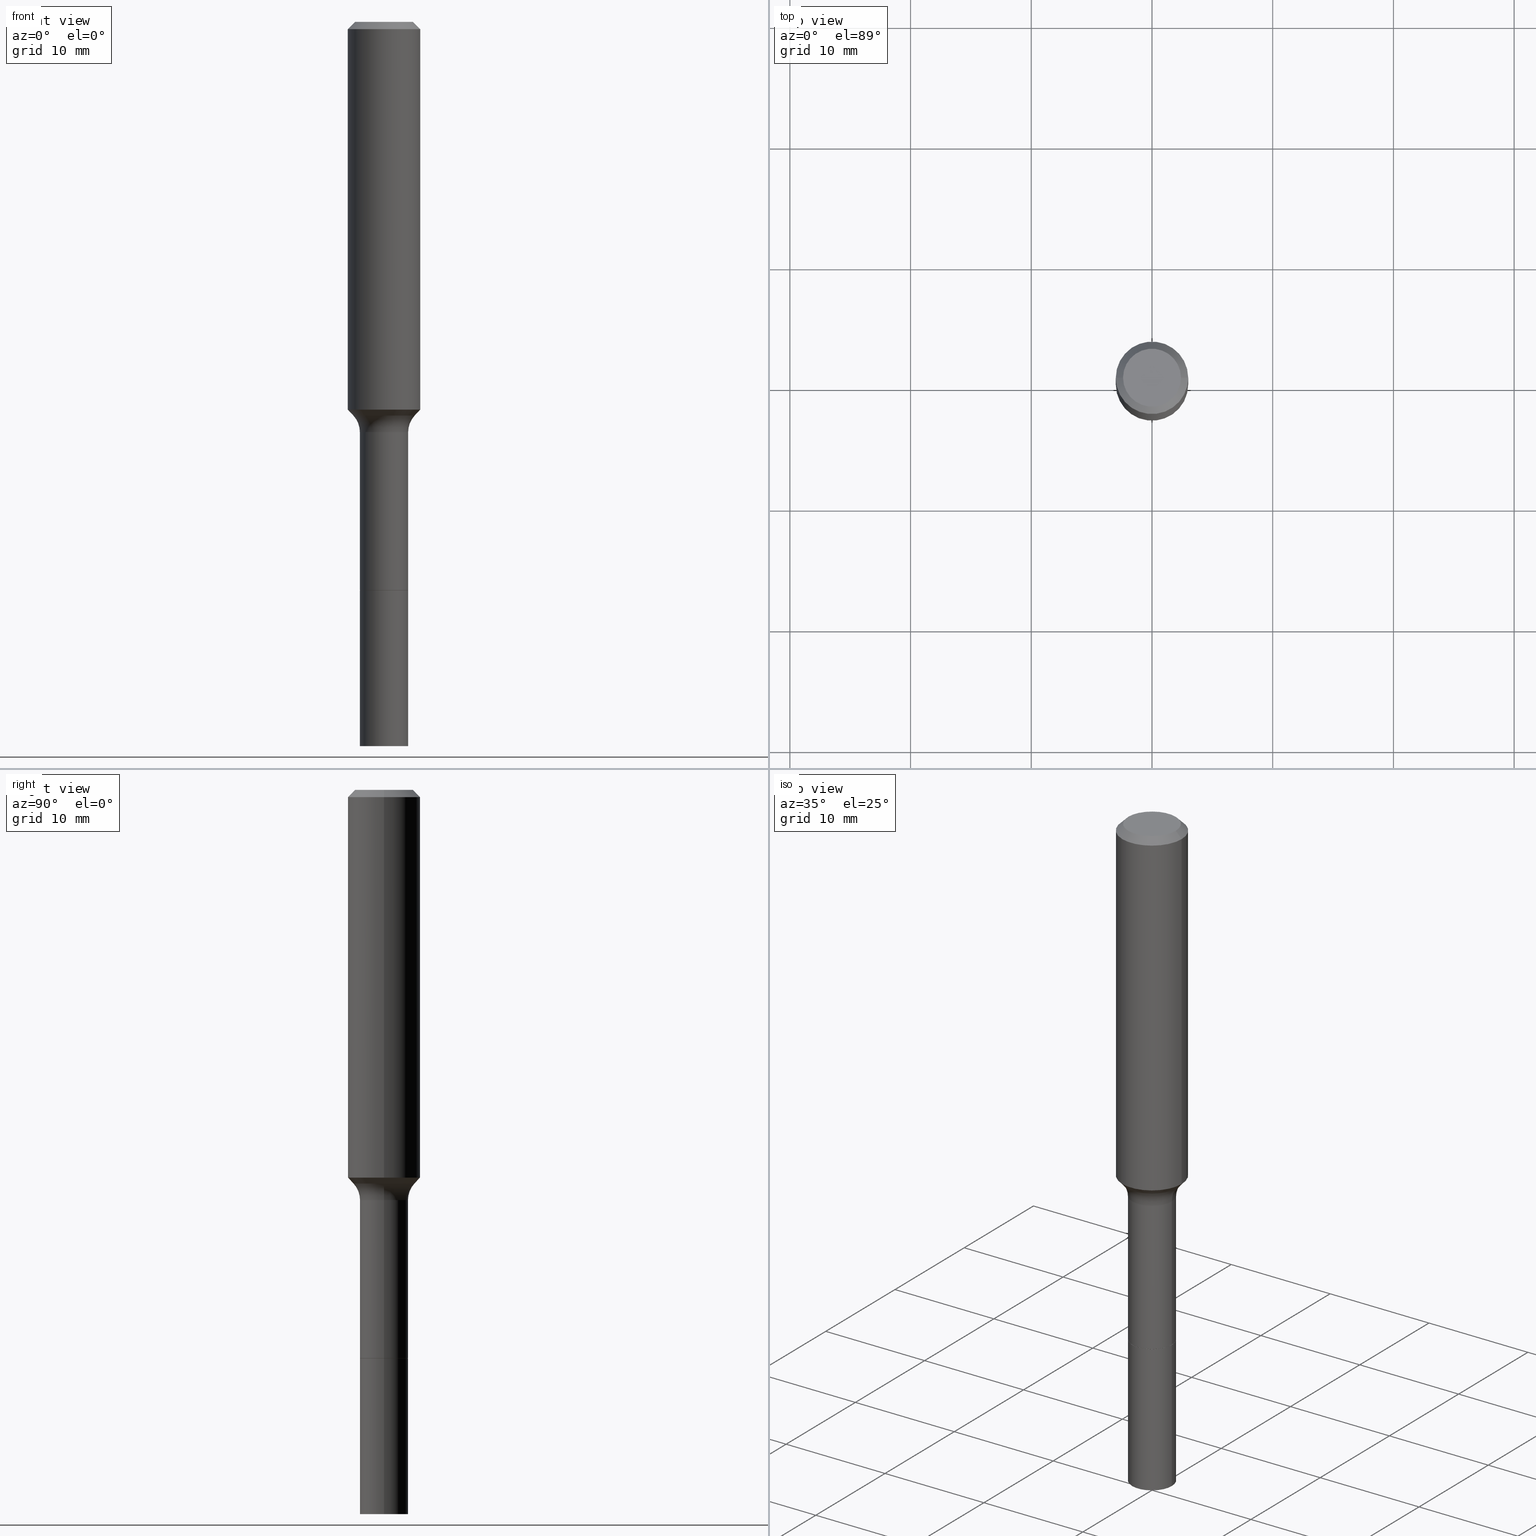
[diagram: canonical four-view strip — front | top / right | iso, engineering-drawing reading convention]
A machine part, canonical four-view strip (front | top / right | iso — engineering-drawing reading convention). The complete STEP part file that produces these views, byte-faithful:
ISO-10303-21;
HEADER;
FILE_DESCRIPTION (( 'STEP AP203' ),
    '1' );
FILE_NAME ('67715.STEP',
    '2025-04-01T15:29:38',
    ( '' ),
    ( '' ),
    'SwSTEP 2.0',
    'SolidWorks 2024',
    '' );
FILE_SCHEMA (( 'CONFIG_CONTROL_DESIGN' ));
ENDSEC;

DATA;
#1 = ORIENTED_EDGE ( 'NONE', *, *, #395, .T. ) ;
#2 = APPROVAL_ROLE ( '' ) ;
#3 = APPLICATION_CONTEXT ( 'configuration controlled 3d designs of mechanical parts and assemblies' ) ;
#4 = AXIS2_PLACEMENT_3D ( 'NONE', #65, #32, #40 ) ;
#5 = CARTESIAN_POINT ( 'NONE',  ( 7.545787641473140628E-46, -1.077338491108201769E-31, -3.085620075131671975E-17 ) ) ;
#6 = DIRECTION ( 'NONE',  ( -2.445468806185136597E-29, 3.491481338843145583E-15, 1.000000000000000000 ) ) ;
#7 = DIRECTION ( 'NONE',  ( -2.445468806185136877E-29, 3.491481338843145188E-15, 1.000000000000000000 ) ) ;
#8 = DIRECTION ( 'NONE',  ( -2.445468806185136597E-29, 3.491481338843145583E-15, 1.000000000000000000 ) ) ;
#9 = COORDINATED_UNIVERSAL_TIME_OFFSET ( 5, 0, .BEHIND. ) ;
#10 = EDGE_CURVE ( 'NONE', #408, #178, #84, .T. ) ;
#11 = DIRECTION ( 'NONE',  ( 2.445468806185136597E-29, -3.491481338843145583E-15, -1.000000000000000000 ) ) ;
#12 = CARTESIAN_POINT ( 'NONE',  ( 5.776686413970529753E-29, -8.247577218615279626E-15, -2.362200000000000077 ) ) ;
#13 = FACE_OUTER_BOUND ( 'NONE', #228, .T. ) ;
#14 = VECTOR ( 'NONE', #433, 39.37007874015748143 ) ;
#15 = DESIGN_CONTEXT ( 'detailed design', #3, 'design' ) ;
#16 = DIRECTION ( 'NONE',  ( -1.000000000000000000, 6.982962677686265922E-15, -4.876176775795935793E-29 ) ) ;
#17 = EDGE_LOOP ( 'NONE', ( #151, #137 ) ) ;
#18 = AXIS2_PLACEMENT_3D ( 'NONE', #129, #171, #447 ) ;
#19 = ORIENTED_EDGE ( 'NONE', *, *, #275, .F. ) ;
#20 = AXIS2_PLACEMENT_3D ( 'NONE', #41, #235, #472 ) ;
#21 = EDGE_CURVE ( 'NONE', #198, #100, #358, .T. ) ;
#22 = ORIENTED_EDGE ( 'NONE', *, *, #482, .T. ) ;
#23 = APPLICATION_PROTOCOL_DEFINITION ( 'international standard', 'config_control_design', 1994, #492 ) ;
#24 = EDGE_CURVE ( 'NONE', #385, #268, #152, .T. ) ;
#25 = VERTEX_POINT ( 'NONE', #310 ) ;
#26 = DIRECTION ( 'NONE',  ( 0.7071067811866199593, -2.468850131083015945E-15, 0.7071067811864750752 ) ) ;
#27 = CIRCLE ( 'NONE', #4, 0.07999999999999996003 ) ;
#28 = EDGE_LOOP ( 'NONE', ( #411, #321 ) ) ;
#29 = CARTESIAN_POINT ( 'NONE',  ( 0.1180999999999999966, -9.071566814582237199E-16, -0.02362000000000014435 ) ) ;
#30 = EDGE_CURVE ( 'NONE', #508, #135, #196, .T. ) ;
#31 = EDGE_LOOP ( 'NONE', ( #19, #378, #22, #105 ) ) ;
#32 = DIRECTION ( 'NONE',  ( 7.105427357601001859E-15, 1.000000000000000000, -3.491481338843145583E-15 ) ) ;
#33 = UNCERTAINTY_MEASURE_WITH_UNIT (LENGTH_MEASURE( 1.000000000000000082E-05 ), #329, 'distance_accuracy_value', 'NONE');
#34 = DIRECTION ( 'NONE',  ( 1.000000000000000000, -6.982962677686264344E-15, 0.000000000000000000 ) ) ;
#35 = AXIS2_PLACEMENT_3D ( 'NONE', #298, #375, #61 ) ;
#36 = DIRECTION ( 'NONE',  ( -2.445468806185136597E-29, 3.491481338843145583E-15, 1.000000000000000000 ) ) ;
#37 = CONICAL_SURFACE ( 'NONE', #327, 0.07825000000000000011, 0.7853981633975507526 ) ;
#38 = CONICAL_SURFACE ( 'NONE', #466, 0.1180999999999999966, 0.7853981633974461696 ) ;
#39 = ADVANCED_FACE ( 'NONE', ( #203 ), #345, .T. ) ;
#40 = DIRECTION ( 'NONE',  ( -1.000000000000000000, 7.105427357601001859E-15, 0.000000000000000000 ) ) ;
#41 = CARTESIAN_POINT ( 'NONE',  ( 0.000000000000000000, 0.000000000000000000, 0.000000000000000000 ) ) ;
#42 = DIRECTION ( 'NONE',  ( -2.445468806185136597E-29, 3.491481338843145583E-15, 1.000000000000000000 ) ) ;
#43 = ORIENTED_EDGE ( 'NONE', *, *, #482, .F. ) ;
#44 = APPROVAL_ROLE ( '' ) ;
#45 = CARTESIAN_POINT ( 'NONE',  ( -0.07874999999999994504, 5.595524044110785059E-16, -3.873661383575735690E-30 ) ) ;
#46 = DIRECTION ( 'NONE',  ( -2.445468806185136877E-29, 3.491481338843145188E-15, 1.000000000000000000 ) ) ;
#47 = PERSON_AND_ORGANIZATION ( #257, #244 ) ;
#48 = DIRECTION ( 'NONE',  ( -2.445468806185136877E-29, 3.491481338843145188E-15, 1.000000000000000000 ) ) ;
#49 = CARTESIAN_POINT ( 'NONE',  ( 4.534388260428479994E-29, -6.473904698482961003E-15, -1.854200000000000070 ) ) ;
#50 = CARTESIAN_POINT ( 'NONE',  ( 0.07875000000000008382, -7.023813009350755138E-15, -1.854200000000000070 ) ) ;
#51 = CARTESIAN_POINT ( 'NONE',  ( 0.07875000000000000056, -7.022067268681332845E-15, -1.853700000000000125 ) ) ;
#52 = CIRCLE ( 'NONE', #511, 0.1181000000000001493 ) ;
#53 = AXIS2_PLACEMENT_3D ( 'NONE', #477, #313, #231 ) ;
#54 = CALENDAR_DATE ( 2025, 1, 4 ) ;
#55 = DIRECTION ( 'NONE',  ( -2.445468806185136597E-29, 3.491481338843145583E-15, 1.000000000000000000 ) ) ;
#56 = APPROVAL ( #488, 'UNSPECIFIED' ) ;
#57 = ORIENTED_EDGE ( 'NONE', *, *, #21, .T. ) ;
#58 = TOROIDAL_SURFACE ( 'NONE', #218, 0.1587499999999999190, 0.07999999999999996003 ) ;
#59 = ORIENTED_EDGE ( 'NONE', *, *, #292, .F. ) ;
#60 = ORIENTED_EDGE ( 'NONE', *, *, #386, .T. ) ;
#61 = DIRECTION ( 'NONE',  ( 1.000000000000000000, -6.982962677686261977E-15, 0.000000000000000000 ) ) ;
#62 = EDGE_CURVE ( 'NONE', #372, #177, #405, .T. ) ;
#63 = VECTOR ( 'NONE', #161, 39.37007874015748143 ) ;
#64 = LINE ( 'NONE', #229, #128 ) ;
#65 = CARTESIAN_POINT ( 'NONE',  ( -0.1587499999999999190, -3.544313734620738473E-15, -1.338200000000000056 ) ) ;
#66 = EDGE_CURVE ( 'NONE', #25, #297, #473, .T. ) ;
#67 = ORIENTED_EDGE ( 'NONE', *, *, #275, .T. ) ;
#68 = DIRECTION ( 'NONE',  ( 2.438088387897960049E-29, -3.491481338843145188E-15, -1.000000000000000000 ) ) ;
#69 = AXIS2_PLACEMENT_3D ( 'NONE', #382, #277, #197 ) ;
#70 = MANIFOLD_SOLID_BREP ( 'Body-Move/Copy2[2]', #514 ) ;
#71 = DIRECTION ( 'NONE',  ( 1.000000000000000000, -6.982962677686267499E-15, 4.875432709231658792E-29 ) ) ;
#72 = EDGE_CURVE ( 'NONE', #508, #408, #52, .T. ) ;
#73 =( GEOMETRIC_REPRESENTATION_CONTEXT ( 3 ) GLOBAL_UNCERTAINTY_ASSIGNED_CONTEXT ( ( #33 ) ) GLOBAL_UNIT_ASSIGNED_CONTEXT ( ( #329, #258, #265 ) ) REPRESENTATION_CONTEXT ( 'NONE', 'WORKASPACE' ) );
#74 = CALENDAR_DATE ( 2025, 1, 4 ) ;
#75 = MANIFOLD_SOLID_BREP ( 'Body-Move/Copy2[1]', #369 ) ;
#76 = ORIENTED_EDGE ( 'NONE', *, *, #24, .T. ) ;
#77 = COORDINATED_UNIVERSAL_TIME_OFFSET ( 5, 0, .BEHIND. ) ;
#78 = DIRECTION ( 'NONE',  ( -2.445468806185136597E-29, 3.491481338843145583E-15, 1.000000000000000000 ) ) ;
#79 = ADVANCED_BREP_SHAPE_REPRESENTATION ( '67715', ( #75, #70, #139 ), #73 ) ;
#80 = EDGE_LOOP ( 'NONE', ( #338, #334 ) ) ;
#81 = LINE ( 'NONE', #45, #226 ) ;
#82 = EDGE_CURVE ( 'NONE', #123, #135, #165, .T. ) ;
#83 = CARTESIAN_POINT ( 'NONE',  ( 0.000000000000000000, 0.000000000000000000, 0.000000000000000000 ) ) ;
#84 = LINE ( 'NONE', #434, #63 ) ;
#85 = CONICAL_SURFACE ( 'NONE', #69, 0.1180999999999999966, 0.7853981633974461696 ) ;
#86 = CC_DESIGN_APPROVAL ( #140, ( #237 ) ) ;
#87 = DIRECTION ( 'NONE',  ( 1.000000000000000000, -6.982962677686261977E-15, 0.000000000000000000 ) ) ;
#88 = PERSON_AND_ORGANIZATION_ROLE ( 'design_supplier' ) ;
#89 = FACE_OUTER_BOUND ( 'NONE', #461, .T. ) ;
#90 = ADVANCED_FACE ( 'NONE', ( #126 ), #37, .T. ) ;
#91 = LINE ( 'NONE', #122, #374 ) ;
#92 = APPROVAL_STATUS ( 'not_yet_approved' ) ;
#93 = PRODUCT_RELATED_PRODUCT_CATEGORY ( 'detail', '', ( #269 ) ) ;
#94 = DIRECTION ( 'NONE',  ( 1.000000000000000000, -6.982962677686269866E-15, 0.000000000000000000 ) ) ;
#95 = AXIS2_PLACEMENT_3D ( 'NONE', #436, #325, #289 ) ;
#96 = CARTESIAN_POINT ( 'NONE',  ( 3.272526356436949336E-29, -4.672300327639896745E-15, -1.338200000000000056 ) ) ;
#97 = DIRECTION ( 'NONE',  ( 1.000000000000000000, -6.982962677686266711E-15, 4.876176775795936353E-29 ) ) ;
#98 = ORIENTED_EDGE ( 'NONE', *, *, #485, .F. ) ;
#99 = EDGE_CURVE ( 'NONE', #307, #123, #263, .T. ) ;
#100 = VERTEX_POINT ( 'NONE', #389 ) ;
#101 = CONICAL_SURFACE ( 'NONE', #380, 0.07825000000000000011, 0.7853981633975507526 ) ;
#102 = CC_DESIGN_SECURITY_CLASSIFICATION ( #432, ( #381 ) ) ;
#103 = EDGE_LOOP ( 'NONE', ( #510, #57, #421, #504 ) ) ;
#104 = EDGE_CURVE ( 'NONE', #177, #372, #200, .T. ) ;
#105 = ORIENTED_EDGE ( 'NONE', *, *, #24, .F. ) ;
#106 = FACE_OUTER_BOUND ( 'NONE', #225, .T. ) ;
#107 = ORIENTED_EDGE ( 'NONE', *, *, #426, .T. ) ;
#108 = VERTEX_POINT ( 'NONE', #360 ) ;
#109 = ORIENTED_EDGE ( 'NONE', *, *, #232, .T. ) ;
#110 = VECTOR ( 'NONE', #127, 39.37007874015748143 ) ;
#111 = LOCAL_TIME ( 11, 29, 38.00000000000000000, #9 ) ;
#112 = DIRECTION ( 'NONE',  ( -2.445468806185136597E-29, 3.491481338843145583E-15, 1.000000000000000000 ) ) ;
#113 = ORIENTED_EDGE ( 'NONE', *, *, #467, .T. ) ;
#114 = DIRECTION ( 'NONE',  ( 1.000000000000000000, -6.982962677686264344E-15, 0.000000000000000000 ) ) ;
#115 = ADVANCED_FACE ( 'NONE', ( #399 ), #58, .F. ) ;
#116 = DIRECTION ( 'NONE',  ( -2.445468806185136597E-29, 3.491481338843145583E-15, 1.000000000000000000 ) ) ;
#117 = DIRECTION ( 'NONE',  ( -2.445468806185136597E-29, 3.491481338843145583E-15, 1.000000000000000000 ) ) ;
#118 = VECTOR ( 'NONE', #332, 39.37007874015748143 ) ;
#119 = EDGE_LOOP ( 'NONE', ( #501, #60, #238, #300 ) ) ;
#120 = LOCAL_TIME ( 11, 29, 38.00000000000000000, #247 ) ;
#121 = ADVANCED_FACE ( 'NONE', ( #487 ), #456, .F. ) ;
#122 = CARTESIAN_POINT ( 'NONE',  ( -0.07825000000000000011, -5.917905007750682311E-15, -1.854200000000000070 ) ) ;
#123 = VERTEX_POINT ( 'NONE', #323 ) ;
#124 = EDGE_CURVE ( 'NONE', #307, #178, #407, .T. ) ;
#125 = LINE ( 'NONE', #50, #431 ) ;
#126 = FACE_OUTER_BOUND ( 'NONE', #459, .T. ) ;
#127 = DIRECTION ( 'NONE',  ( -2.445468806185136877E-29, 3.491481338843145188E-15, 1.000000000000000000 ) ) ;
#128 = VECTOR ( 'NONE', #148, 39.37007874015748143 ) ;
#129 = CARTESIAN_POINT ( 'NONE',  ( 3.139101899204769565E-29, -4.481805563857511051E-15, -1.283640131195000311 ) ) ;
#130 = AXIS2_PLACEMENT_3D ( 'NONE', #273, #116, #357 ) ;
#131 = EDGE_CURVE ( 'NONE', #100, #297, #483, .T. ) ;
#132 = PLANE ( 'NONE',  #333 ) ;
#133 =( LENGTH_UNIT ( ) NAMED_UNIT ( * ) SI_UNIT ( $, .METRE. ) );
#134 = AXIS2_PLACEMENT_3D ( 'NONE', #83, #117, #274 ) ;
#135 = VERTEX_POINT ( 'NONE', #189 ) ;
#136 = ADVANCED_FACE ( 'NONE', ( #216 ), #255, .T. ) ;
#137 = ORIENTED_EDGE ( 'NONE', *, *, #450, .T. ) ;
#138 = TOROIDAL_SURFACE ( 'NONE', #160, 0.1587499999999999190, 0.07999999999999996003 ) ;
#139 = AXIS2_PLACEMENT_3D ( 'NONE', #451, #142, #498 ) ;
#140 = APPROVAL ( #92, 'UNSPECIFIED' ) ;
#141 = ORIENTED_EDGE ( 'NONE', *, *, #62, .T. ) ;
#142 = DIRECTION ( 'NONE',  ( 0.000000000000000000, 0.000000000000000000, 1.000000000000000000 ) ) ;
#143 = ORIENTED_EDGE ( 'NONE', *, *, #21, .F. ) ;
#144 = CC_DESIGN_PERSON_AND_ORGANIZATION_ASSIGNMENT ( #371, #361, ( #237 ) ) ;
#145 = EDGE_LOOP ( 'NONE', ( #187, #352, #341, #179 ) ) ;
#146 = CARTESIAN_POINT ( 'NONE',  ( 5.776197320209328408E-31, -8.246878922347560526E-17, -0.02362000000000014435 ) ) ;
#147 = ORIENTED_EDGE ( 'NONE', *, *, #373, .T. ) ;
#148 = DIRECTION ( 'NONE',  ( 0.6819983600624995868, -2.208861293262486453E-15, 0.7313537016191694606 ) ) ;
#149 = CIRCLE ( 'NONE', #35, 0.07875000000000000056 ) ;
#150 = AXIS2_PLACEMENT_3D ( 'NONE', #174, #223, #409 ) ;
#151 = ORIENTED_EDGE ( 'NONE', *, *, #413, .T. ) ;
#152 = CIRCLE ( 'NONE', #53, 0.07999999999999996003 ) ;
#153 = EDGE_CURVE ( 'NONE', #108, #339, #27, .T. ) ;
#154 = EDGE_LOOP ( 'NONE', ( #259, #302, #304, #505 ) ) ;
#155 = FACE_OUTER_BOUND ( 'NONE', #221, .T. ) ;
#156 = CARTESIAN_POINT ( 'NONE',  ( 3.092269513578415499E-29, -4.414941329051343156E-15, -1.264489453211333325 ) ) ;
#157 = CALENDAR_DATE ( 2025, 1, 4 ) ;
#158 = CARTESIAN_POINT ( 'NONE',  ( 3.272526356436949336E-29, -4.672300327639896745E-15, -1.338200000000000056 ) ) ;
#159 = VECTOR ( 'NONE', #480, 39.37007874015748143 ) ;
#160 = AXIS2_PLACEMENT_3D ( 'NONE', #188, #391, #194 ) ;
#161 = DIRECTION ( 'NONE',  ( -2.445468806185136877E-29, 3.491481338843145188E-15, 1.000000000000000000 ) ) ;
#162 = AXIS2_PLACEMENT_3D ( 'NONE', #267, #55, #493 ) ;
#163 = APPROVAL_STATUS ( 'not_yet_approved' ) ;
#164 = DIRECTION ( 'NONE',  ( -2.445468806185136597E-29, 3.491481338843145583E-15, 1.000000000000000000 ) ) ;
#165 = LINE ( 'NONE', #515, #159 ) ;
#166 = CALENDAR_DATE ( 2025, 1, 4 ) ;
#167 = CARTESIAN_POINT ( 'NONE',  ( 0.09447999999999998066, -7.704367267948738690E-16, -3.085620075131172158E-17 ) ) ;
#168 = CARTESIAN_POINT ( 'NONE',  ( 0.07874999999999991729, -5.222208638507690091E-15, -1.338200000000000056 ) ) ;
#169 = ADVANCED_FACE ( 'NONE', ( #311 ), #344, .F. ) ;
#170 = PERSON_AND_ORGANIZATION_ROLE ( 'creator' ) ;
#171 = DIRECTION ( 'NONE',  ( -2.445468806185136597E-29, 3.491481338843145583E-15, 1.000000000000000000 ) ) ;
#172 = VECTOR ( 'NONE', #46, 39.37007874015748143 ) ;
#173 = APPROVAL_ROLE ( '' ) ;
#174 = CARTESIAN_POINT ( 'NONE',  ( 4.534388260428479994E-29, -6.473904698482961003E-15, -1.854200000000000070 ) ) ;
#175 = CARTESIAN_POINT ( 'NONE',  ( 0.1180999999999999966, -8.926936027602933910E-16, -0.02362000000000014435 ) ) ;
#176 = ADVANCED_FACE ( 'NONE', ( #227 ), #85, .T. ) ;
#177 = VERTEX_POINT ( 'NONE', #303 ) ;
#178 = VERTEX_POINT ( 'NONE', #29 ) ;
#179 = ORIENTED_EDGE ( 'NONE', *, *, #232, .F. ) ;
#180 = CARTESIAN_POINT ( 'NONE',  ( 3.272526356436949336E-29, -4.672300327639896745E-15, -1.338200000000000056 ) ) ;
#181 = EDGE_CURVE ( 'NONE', #408, #508, #264, .T. ) ;
#182 = AXIS2_PLACEMENT_3D ( 'NONE', #276, #429, #71 ) ;
#183 = ORIENTED_EDGE ( 'NONE', *, *, #124, .T. ) ;
#184 = CIRCLE ( 'NONE', #195, 0.07874999999999991729 ) ;
#185 = CC_DESIGN_PERSON_AND_ORGANIZATION_ASSIGNMENT ( #47, #170, ( #381 ) ) ;
#186 = APPROVAL_PERSON_ORGANIZATION ( #294, #140, #173 ) ;
#187 = ORIENTED_EDGE ( 'NONE', *, *, #30, .F. ) ;
#188 = CARTESIAN_POINT ( 'NONE',  ( 3.272526356436949336E-29, -4.672300327639896745E-15, -1.338200000000000056 ) ) ;
#189 = CARTESIAN_POINT ( 'NONE',  ( -0.1180999999999999966, -1.409554088204729926E-15, -0.02362000000000014435 ) ) ;
#190 = ORIENTED_EDGE ( 'NONE', *, *, #467, .F. ) ;
#191 = FACE_OUTER_BOUND ( 'NONE', #31, .T. ) ;
#192 = CARTESIAN_POINT ( 'NONE',  ( 4.534388260428479994E-29, -6.473904698482961003E-15, -1.854200000000000070 ) ) ;
#193 = ADVANCED_FACE ( 'NONE', ( #516 ), #101, .T. ) ;
#194 = DIRECTION ( 'NONE',  ( 1.000000000000000000, -6.982962677686268288E-15, 4.883557194083113462E-29 ) ) ;
#195 = AXIS2_PLACEMENT_3D ( 'NONE', #180, #377, #94 ) ;
#196 = LINE ( 'NONE', #469, #172 ) ;
#197 = DIRECTION ( 'NONE',  ( -1.000000000000000000, 6.982962677686266711E-15, 0.000000000000000000 ) ) ;
#198 = VERTEX_POINT ( 'NONE', #428 ) ;
#199 = ORIENTED_EDGE ( 'NONE', *, *, #299, .T. ) ;
#200 = CIRCLE ( 'NONE', #296, 0.07875000000000015321 ) ;
#201 = CARTESIAN_POINT ( 'NONE',  ( 5.776686413970529753E-29, -8.247577218615279626E-15, -2.362200000000000077 ) ) ;
#202 = VECTOR ( 'NONE', #26, 39.37007874015748143 ) ;
#203 = FACE_OUTER_BOUND ( 'NONE', #420, .T. ) ;
#204 = DIRECTION ( 'NONE',  ( 1.000000000000000000, -6.982962677686269866E-15, 0.000000000000000000 ) ) ;
#205 = FACE_OUTER_BOUND ( 'NONE', #464, .T. ) ;
#206 = EDGE_CURVE ( 'NONE', #108, #508, #425, .T. ) ;
#207 = LINE ( 'NONE', #249, #270 ) ;
#208 = DIRECTION ( 'NONE',  ( -2.445468806185136597E-29, 3.491481338843145583E-15, 1.000000000000000000 ) ) ;
#209 = AXIS2_PLACEMENT_3D ( 'NONE', #322, #78, #484 ) ;
#210 = LOCAL_TIME ( 11, 29, 38.00000000000000000, #319 ) ;
#211 = DIRECTION ( 'NONE',  ( 1.000000000000000000, -6.982962677686267499E-15, 0.000000000000000000 ) ) ;
#212 = DATE_AND_TIME ( #54, #271 ) ;
#213 = CARTESIAN_POINT ( 'NONE',  ( -0.07875000000000000056, -6.801188554138039935E-15, -1.854200000000000070 ) ) ;
#214 = ADVANCED_FACE ( 'NONE', ( #191 ), #138, .F. ) ;
#215 = ORIENTED_EDGE ( 'NONE', *, *, #82, .T. ) ;
#216 = FACE_OUTER_BOUND ( 'NONE', #154, .T. ) ;
#217 = CARTESIAN_POINT ( 'NONE',  ( -0.1181000000000001493, -3.575790358118663381E-15, -1.264489453211333325 ) ) ;
#218 = AXIS2_PLACEMENT_3D ( 'NONE', #96, #8, #448 ) ;
#219 = AXIS2_PLACEMENT_3D ( 'NONE', #418, #460, #97 ) ;
#220 = ORIENTED_EDGE ( 'NONE', *, *, #292, .T. ) ;
#221 = EDGE_LOOP ( 'NONE', ( #379, #141, #376, #261 ) ) ;
#222 = ADVANCED_FACE ( 'NONE', ( #155 ), #350, .T. ) ;
#223 = DIRECTION ( 'NONE',  ( -2.445468806185136597E-29, 3.491481338843145583E-15, 1.000000000000000000 ) ) ;
#224 = ORIENTED_EDGE ( 'NONE', *, *, #181, .F. ) ;
#225 = EDGE_LOOP ( 'NONE', ( #113, #220, #392, #422 ) ) ;
#226 = VECTOR ( 'NONE', #402, 39.37007874015748143 ) ;
#227 = FACE_OUTER_BOUND ( 'NONE', #284, .T. ) ;
#228 = EDGE_LOOP ( 'NONE', ( #331, #143 ) ) ;
#229 = CARTESIAN_POINT ( 'NONE',  ( 0.1002417038704661312, -5.181789640732654764E-15, -1.283640131195000311 ) ) ;
#230 = CARTESIAN_POINT ( 'NONE',  ( 4.534388260428479994E-29, -6.473904698482961003E-15, -1.854200000000000070 ) ) ;
#231 = DIRECTION ( 'NONE',  ( 1.000000000000000000, -6.982962677686262766E-15, 0.000000000000000000 ) ) ;
#232 = EDGE_CURVE ( 'NONE', #135, #178, #250, .T. ) ;
#233 = DIRECTION ( 'NONE',  ( 1.000000000000000000, -6.982962677686267499E-15, 0.000000000000000000 ) ) ;
#234 = AXIS2_PLACEMENT_3D ( 'NONE', #146, #306, #424 ) ;
#235 = DIRECTION ( 'NONE',  ( -2.445468806185136597E-29, 3.491481338843145583E-15, 1.000000000000000000 ) ) ;
#236 = PERSON_AND_ORGANIZATION ( #257, #244 ) ;
#237 = PRODUCT_DEFINITION ( 'UNKNOWN', '', #381, #15 ) ;
#238 = ORIENTED_EDGE ( 'NONE', *, *, #413, .F. ) ;
#239 = DIRECTION ( 'NONE',  ( -2.445468806185136597E-29, 3.491481338843145583E-15, 1.000000000000000000 ) ) ;
#240 = ORIENTED_EDGE ( 'NONE', *, *, #253, .T. ) ;
#241 = FACE_OUTER_BOUND ( 'NONE', #465, .T. ) ;
#242 = AXIS2_PLACEMENT_3D ( 'NONE', #309, #347, #114 ) ;
#243 = DIRECTION ( 'NONE',  ( 1.000000000000000000, -6.982962677686267499E-15, 0.000000000000000000 ) ) ;
#244 = ORGANIZATION ( 'UNSPECIFIED', 'UNSPECIFIED', '' ) ;
#245 = CALENDAR_DATE ( 2025, 1, 4 ) ;
#246 = PLANE ( 'NONE',  #486 ) ;
#247 = COORDINATED_UNIVERSAL_TIME_OFFSET ( 5, 0, .BEHIND. ) ;
#248 = DIRECTION ( 'NONE',  ( 1.000000000000000000, -6.982962677686265922E-15, 4.876176775795935793E-29 ) ) ;
#249 = CARTESIAN_POINT ( 'NONE',  ( -0.07875000000000008382, -5.914352294071881412E-15, -1.854200000000000070 ) ) ;
#250 = CIRCLE ( 'NONE', #234, 0.1180999999999999966 ) ;
#251 = CIRCLE ( 'NONE', #150, 0.07825000000000000011 ) ;
#252 = DIRECTION ( 'NONE',  ( -2.445468806185136597E-29, 3.491481338843145583E-15, 1.000000000000000000 ) ) ;
#253 = EDGE_CURVE ( 'NONE', #385, #408, #64, .T. ) ;
#254 = MECHANICAL_CONTEXT ( 'NONE', #492, 'mechanical' ) ;
#255 = CYLINDRICAL_SURFACE ( 'NONE', #134, 0.1181000000000000660 ) ;
#256 = COORDINATED_UNIVERSAL_TIME_OFFSET ( 5, 0, .BEHIND. ) ;
#257 = PERSON ( 'UNSPECIFIED', 'UNSPECIFIED', 'UNSPECIFIED', ('UNSPECIFIED'), ('UNSPECIFIED'), ('UNSPECIFIED') ) ;
#258 =( NAMED_UNIT ( * ) PLANE_ANGLE_UNIT ( ) SI_UNIT ( $, .RADIAN. ) );
#259 = ORIENTED_EDGE ( 'NONE', *, *, #181, .T. ) ;
#260 = ADVANCED_FACE ( 'NONE', ( #383 ), #342, .T. ) ;
#261 = ORIENTED_EDGE ( 'NONE', *, *, #450, .F. ) ;
#262 = CIRCLE ( 'NONE', #474, 0.09447999999999998066 ) ;
#263 = CIRCLE ( 'NONE', #182, 0.09447999999999998066 ) ;
#264 = CIRCLE ( 'NONE', #242, 0.1181000000000001493 ) ;
#265 =( NAMED_UNIT ( * ) SI_UNIT ( $, .STERADIAN. ) SOLID_ANGLE_UNIT ( ) );
#266 = ORIENTED_EDGE ( 'NONE', *, *, #153, .F. ) ;
#267 = CARTESIAN_POINT ( 'NONE',  ( 0.000000000000000000, 0.000000000000000000, 0.000000000000000000 ) ) ;
#268 = VERTEX_POINT ( 'NONE', #168 ) ;
#269 = PRODUCT ( '67715', '67715', '', ( #254 ) ) ;
#270 = VECTOR ( 'NONE', #7, 39.37007874015748143 ) ;
#271 = LOCAL_TIME ( 11, 29, 38.00000000000000000, #256 ) ;
#272 = CC_DESIGN_PERSON_AND_ORGANIZATION_ASSIGNMENT ( #236, #363, ( #432 ) ) ;
#273 = CARTESIAN_POINT ( 'NONE',  ( 5.776686413970529753E-29, -8.247577218615279626E-15, -2.362200000000000077 ) ) ;
#274 = DIRECTION ( 'NONE',  ( 1.000000000000000000, -6.982962677686266711E-15, 4.876176775795936353E-29 ) ) ;
#275 = EDGE_CURVE ( 'NONE', #108, #385, #316, .T. ) ;
#276 = CARTESIAN_POINT ( 'NONE',  ( 7.545787641473140628E-46, -1.077338491108201769E-31, -3.085620075131671975E-17 ) ) ;
#277 = DIRECTION ( 'NONE',  ( 2.445468806185136597E-29, -3.491481338843145583E-15, -1.000000000000000000 ) ) ;
#278 = CIRCLE ( 'NONE', #337, 0.07874999999999991729 ) ;
#279 = ORIENTED_EDGE ( 'NONE', *, *, #82, .F. ) ;
#280 = DIRECTION ( 'NONE',  ( -1.000000000000000000, 6.982962677686265922E-15, -4.876176775795935793E-29 ) ) ;
#281 = ORIENTED_EDGE ( 'NONE', *, *, #253, .F. ) ;
#282 = SHAPE_DEFINITION_REPRESENTATION ( #457, #79 ) ;
#283 = CARTESIAN_POINT ( 'NONE',  ( -0.07875000000000015321, -6.801188554138039146E-15, -2.362200000000000077 ) ) ;
#284 = EDGE_LOOP ( 'NONE', ( #416, #183, #199, #279 ) ) ;
#285 = CARTESIAN_POINT ( 'NONE',  ( 0.1181000000000001493, -5.239629221286092997E-15, -1.264489453211333325 ) ) ;
#286 = ADVANCED_FACE ( 'NONE', ( #89 ), #452, .T. ) ;
#287 = CARTESIAN_POINT ( 'NONE',  ( 0.07825000000000000011, -7.020321528011911342E-15, -1.854200000000000070 ) ) ;
#288 = DATE_AND_TIME ( #157, #111 ) ;
#289 = DIRECTION ( 'NONE',  ( 1.000000000000000000, -6.982962677686266711E-15, 0.000000000000000000 ) ) ;
#290 = AXIS2_PLACEMENT_3D ( 'NONE', #396, #318, #243 ) ;
#291 = CC_DESIGN_PERSON_AND_ORGANIZATION_ASSIGNMENT ( #430, #88, ( #381 ) ) ;
#292 = EDGE_CURVE ( 'NONE', #25, #339, #81, .T. ) ;
#293 = LINE ( 'NONE', #481, #110 ) ;
#294 = PERSON_AND_ORGANIZATION ( #257, #244 ) ;
#295 = CARTESIAN_POINT ( 'NONE',  ( 3.772893820736570314E-46, -5.386692455541008845E-32, -1.542810037565835988E-17 ) ) ;
#296 = AXIS2_PLACEMENT_3D ( 'NONE', #12, #208, #490 ) ;
#297 = VERTEX_POINT ( 'NONE', #51 ) ;
#298 = CARTESIAN_POINT ( 'NONE',  ( 4.533165526025388314E-29, -6.472158957813539500E-15, -1.853700000000000125 ) ) ;
#299 = EDGE_CURVE ( 'NONE', #178, #135, #387, .T. ) ;
#300 = ORIENTED_EDGE ( 'NONE', *, *, #365, .F. ) ;
#301 = VERTEX_POINT ( 'NONE', #489 ) ;
#302 = ORIENTED_EDGE ( 'NONE', *, *, #30, .T. ) ;
#303 = CARTESIAN_POINT ( 'NONE',  ( 0.07875000000000015321, -8.797485529483074550E-15, -2.362200000000000077 ) ) ;
#304 = ORIENTED_EDGE ( 'NONE', *, *, #299, .F. ) ;
#305 = ORIENTED_EDGE ( 'NONE', *, *, #485, .T. ) ;
#306 = DIRECTION ( 'NONE',  ( -2.445468806185136597E-29, 3.491481338843145583E-15, 1.000000000000000000 ) ) ;
#307 = VERTEX_POINT ( 'NONE', #167 ) ;
#308 = AXIS2_PLACEMENT_3D ( 'NONE', #441, #403, #87 ) ;
#309 = CARTESIAN_POINT ( 'NONE',  ( 3.092269513578415499E-29, -4.414941329051343156E-15, -1.264489453211333325 ) ) ;
#310 = CARTESIAN_POINT ( 'NONE',  ( -0.07875000000000000056, -5.012677238315638137E-15, -1.853700000000000125 ) ) ;
#311 = FACE_OUTER_BOUND ( 'NONE', #17, .T. ) ;
#312 = DIRECTION ( 'NONE',  ( -2.445468806185136597E-29, 3.491481338843145583E-15, 1.000000000000000000 ) ) ;
#313 = DIRECTION ( 'NONE',  ( -6.982962677686266711E-15, -1.000000000000000000, 3.491481338843145583E-15 ) ) ;
#314 = PERSON_AND_ORGANIZATION ( #257, #244 ) ;
#315 = DIRECTION ( 'NONE',  ( 1.000000000000000000, -6.982962677686266711E-15, 0.000000000000000000 ) ) ;
#316 = CIRCLE ( 'NONE', #95, 0.1002417038704661312 ) ;
#317 = AXIS2_PLACEMENT_3D ( 'NONE', #518, #6, #439 ) ;
#318 = DIRECTION ( 'NONE',  ( -2.445468806185136597E-29, 3.491481338843145583E-15, 1.000000000000000000 ) ) ;
#319 = COORDINATED_UNIVERSAL_TIME_OFFSET ( 5, 0, .BEHIND. ) ;
#320 = DIRECTION ( 'NONE',  ( -2.438088387897960049E-29, 3.491481338843145188E-15, 1.000000000000000000 ) ) ;
#321 = ORIENTED_EDGE ( 'NONE', *, *, #62, .F. ) ;
#322 = CARTESIAN_POINT ( 'NONE',  ( 3.139101899204769565E-29, -4.481805563857511051E-15, -1.283640131195000311 ) ) ;
#323 = CARTESIAN_POINT ( 'NONE',  ( -0.09447999999999998066, 7.009847083995354710E-16, -3.085620075132147757E-17 ) ) ;
#324 = SECURITY_CLASSIFICATION_LEVEL ( 'unclassified' ) ;
#325 = DIRECTION ( 'NONE',  ( -2.445468806185136597E-29, 3.491481338843145583E-15, 1.000000000000000000 ) ) ;
#326 = AXIS2_PLACEMENT_3D ( 'NONE', #230, #384, #211 ) ;
#327 = AXIS2_PLACEMENT_3D ( 'NONE', #192, #312, #343 ) ;
#328 = DIRECTION ( 'NONE',  ( -2.445468806185136597E-29, 3.491481338843145583E-15, 1.000000000000000000 ) ) ;
#329 =( CONVERSION_BASED_UNIT ( 'INCH', #335 ) LENGTH_UNIT ( ) NAMED_UNIT ( #475 ) );
#330 = CARTESIAN_POINT ( 'NONE',  ( 3.139101899204769565E-29, -4.481805563857511051E-15, -1.283640131195000311 ) ) ;
#331 = ORIENTED_EDGE ( 'NONE', *, *, #517, .F. ) ;
#332 = DIRECTION ( 'NONE',  ( 0.7071067811865460184, -7.319954787623251312E-15, -0.7071067811865490160 ) ) ;
#333 = AXIS2_PLACEMENT_3D ( 'NONE', #49, #320, #248 ) ;
#334 = ORIENTED_EDGE ( 'NONE', *, *, #99, .T. ) ;
#335 = LENGTH_MEASURE_WITH_UNIT ( LENGTH_MEASURE( 0.02539999999999999897 ), #133 );
#336 = ORIENTED_EDGE ( 'NONE', *, *, #455, .F. ) ;
#337 = AXIS2_PLACEMENT_3D ( 'NONE', #158, #328, #204 ) ;
#338 = ORIENTED_EDGE ( 'NONE', *, *, #455, .T. ) ;
#339 = VERTEX_POINT ( 'NONE', #445 ) ;
#340 = CARTESIAN_POINT ( 'NONE',  ( 4.534388260428479994E-29, -6.473904698482961003E-15, -1.854200000000000070 ) ) ;
#341 = ORIENTED_EDGE ( 'NONE', *, *, #10, .T. ) ;
#342 = CYLINDRICAL_SURFACE ( 'NONE', #326, 0.07875000000000008382 ) ;
#343 = DIRECTION ( 'NONE',  ( 1.000000000000000000, -6.982962677686267499E-15, 0.000000000000000000 ) ) ;
#344 = PLANE ( 'NONE',  #462 ) ;
#345 = CYLINDRICAL_SURFACE ( 'NONE', #20, 0.07874999999999994504 ) ;
#346 = ADVANCED_FACE ( 'NONE', ( #205 ), #494, .T. ) ;
#347 = DIRECTION ( 'NONE',  ( -2.445468806185136597E-29, 3.491481338843145583E-15, 1.000000000000000000 ) ) ;
#348 = ORIENTED_EDGE ( 'NONE', *, *, #206, .T. ) ;
#349 = DATE_AND_TIME ( #166, #210 ) ;
#350 = CYLINDRICAL_SURFACE ( 'NONE', #366, 0.07875000000000008382 ) ;
#351 = ADVANCED_FACE ( 'NONE', ( #13 ), #132, .F. ) ;
#352 = ORIENTED_EDGE ( 'NONE', *, *, #72, .T. ) ;
#353 = DATE_TIME_ROLE ( 'creation_date' ) ;
#354 = CARTESIAN_POINT ( 'NONE',  ( 4.534388260428479994E-29, -6.473904698482961003E-15, -1.854200000000000070 ) ) ;
#355 = AXIS2_PLACEMENT_3D ( 'NONE', #364, #359, #315 ) ;
#356 = ADVANCED_FACE ( 'NONE', ( #241 ), #38, .T. ) ;
#357 = DIRECTION ( 'NONE',  ( 1.000000000000000000, -6.982962677686272233E-15, 0.000000000000000000 ) ) ;
#358 = CIRCLE ( 'NONE', #290, 0.07825000000000000011 ) ;
#359 = DIRECTION ( 'NONE',  ( -2.445468806185136597E-29, 3.491481338843145583E-15, 1.000000000000000000 ) ) ;
#360 = CARTESIAN_POINT ( 'NONE',  ( -0.1002417038704660895, -3.769545418803762571E-15, -1.283640131195000311 ) ) ;
#361 = PERSON_AND_ORGANIZATION_ROLE ( 'creator' ) ;
#362 = FACE_OUTER_BOUND ( 'NONE', #28, .T. ) ;
#363 = PERSON_AND_ORGANIZATION_ROLE ( 'classification_officer' ) ;
#364 = CARTESIAN_POINT ( 'NONE',  ( 5.776197320209328408E-31, -8.246878922347560526E-17, -0.02362000000000014435 ) ) ;
#365 = EDGE_CURVE ( 'NONE', #177, #301, #125, .T. ) ;
#366 = AXIS2_PLACEMENT_3D ( 'NONE', #340, #42, #507 ) ;
#367 = PERSON_AND_ORGANIZATION_ROLE ( 'design_owner' ) ;
#368 = DIRECTION ( 'NONE',  ( -0.7071067811866199593, 7.493145998870616062E-15, 0.7071067811864750752 ) ) ;
#369 = CLOSED_SHELL ( 'NONE', ( #260, #446, #222, #169 ) ) ;
#370 = APPROVAL_DATE_TIME ( #212, #140 ) ;
#371 = PERSON_AND_ORGANIZATION ( #257, #244 ) ;
#372 = VERTEX_POINT ( 'NONE', #283 ) ;
#373 = EDGE_CURVE ( 'NONE', #268, #339, #278, .T. ) ;
#374 = VECTOR ( 'NONE', #368, 39.37007874015748143 ) ;
#375 = DIRECTION ( 'NONE',  ( -2.445468806185136597E-29, 3.491481338843145583E-15, 1.000000000000000000 ) ) ;
#376 = ORIENTED_EDGE ( 'NONE', *, *, #365, .T. ) ;
#377 = DIRECTION ( 'NONE',  ( -2.445468806185136597E-29, 3.491481338843145583E-15, 1.000000000000000000 ) ) ;
#378 = ORIENTED_EDGE ( 'NONE', *, *, #153, .T. ) ;
#379 = ORIENTED_EDGE ( 'NONE', *, *, #386, .F. ) ;
#380 = AXIS2_PLACEMENT_3D ( 'NONE', #513, #112, #233 ) ;
#381 = PRODUCT_DEFINITION_FORMATION_WITH_SPECIFIED_SOURCE ( 'ANY', '', #269, .NOT_KNOWN. ) ;
#382 = CARTESIAN_POINT ( 'NONE',  ( 5.776197320209328408E-31, -8.246878922347560526E-17, -0.02362000000000014435 ) ) ;
#383 = FACE_OUTER_BOUND ( 'NONE', #119, .T. ) ;
#384 = DIRECTION ( 'NONE',  ( -2.445468806185136597E-29, 3.491481338843145583E-15, 1.000000000000000000 ) ) ;
#385 = VERTEX_POINT ( 'NONE', #397 ) ;
#386 = EDGE_CURVE ( 'NONE', #372, #471, #207, .T. ) ;
#387 = CIRCLE ( 'NONE', #355, 0.1180999999999999966 ) ;
#388 = CARTESIAN_POINT ( 'NONE',  ( -0.1002417038704661312, -3.769545418803762571E-15, -1.283640131195000311 ) ) ;
#389 = CARTESIAN_POINT ( 'NONE',  ( 0.07825000000000000011, -7.020321528011911342E-15, -1.854200000000000070 ) ) ;
#390 = DATE_AND_TIME ( #74, #423 ) ;
#391 = DIRECTION ( 'NONE',  ( -2.445468806185136597E-29, 3.491481338843145583E-15, 1.000000000000000000 ) ) ;
#392 = ORIENTED_EDGE ( 'NONE', *, *, #373, .F. ) ;
#393 = DATE_TIME_ROLE ( 'classification_date' ) ;
#394 = DIRECTION ( 'NONE',  ( 1.000000000000000000, -6.982962677686261977E-15, 0.000000000000000000 ) ) ;
#395 = EDGE_CURVE ( 'NONE', #297, #268, #293, .T. ) ;
#396 = CARTESIAN_POINT ( 'NONE',  ( 4.534388260428479994E-29, -6.473904698482961003E-15, -1.854200000000000070 ) ) ;
#397 = CARTESIAN_POINT ( 'NONE',  ( 0.1002417038704660895, -5.181789640732653975E-15, -1.283640131195000311 ) ) ;
#398 = CIRCLE ( 'NONE', #308, 0.07875000000000000056 ) ;
#399 = FACE_OUTER_BOUND ( 'NONE', #419, .T. ) ;
#400 = DIRECTION ( 'NONE',  ( 2.438088387897960049E-29, -3.491481338843145188E-15, -1.000000000000000000 ) ) ;
#401 = DIRECTION ( 'NONE',  ( 2.438088387897960049E-29, -3.491481338843145188E-15, -1.000000000000000000 ) ) ;
#402 = DIRECTION ( 'NONE',  ( -2.445468806185136877E-29, 3.491481338843145188E-15, 1.000000000000000000 ) ) ;
#403 = DIRECTION ( 'NONE',  ( -2.445468806185136597E-29, 3.491481338843145583E-15, 1.000000000000000000 ) ) ;
#404 = AXIS2_PLACEMENT_3D ( 'NONE', #354, #239, #394 ) ;
#405 = CIRCLE ( 'NONE', #130, 0.07875000000000015321 ) ;
#406 = CYLINDRICAL_SURFACE ( 'NONE', #219, 0.1181000000000000660 ) ;
#407 = LINE ( 'NONE', #175, #118 ) ;
#408 = VERTEX_POINT ( 'NONE', #285 ) ;
#409 = DIRECTION ( 'NONE',  ( 1.000000000000000000, -6.982962677686267499E-15, 0.000000000000000000 ) ) ;
#410 = APPROVAL ( #163, 'UNSPECIFIED' ) ;
#411 = ORIENTED_EDGE ( 'NONE', *, *, #104, .F. ) ;
#412 = CIRCLE ( 'NONE', #404, 0.07875000000000000056 ) ;
#413 = EDGE_CURVE ( 'NONE', #301, #471, #398, .T. ) ;
#414 = ORIENTED_EDGE ( 'NONE', *, *, #517, .T. ) ;
#415 = CC_DESIGN_APPROVAL ( #410, ( #381 ) ) ;
#416 = ORIENTED_EDGE ( 'NONE', *, *, #99, .F. ) ;
#417 = CC_DESIGN_PERSON_AND_ORGANIZATION_ASSIGNMENT ( #496, #367, ( #269 ) ) ;
#418 = CARTESIAN_POINT ( 'NONE',  ( 0.000000000000000000, 0.000000000000000000, 0.000000000000000000 ) ) ;
#419 = EDGE_LOOP ( 'NONE', ( #266, #98, #76, #147 ) ) ;
#420 = EDGE_LOOP ( 'NONE', ( #59, #437, #1, #43 ) ) ;
#421 = ORIENTED_EDGE ( 'NONE', *, *, #131, .T. ) ;
#422 = ORIENTED_EDGE ( 'NONE', *, *, #395, .F. ) ;
#423 = LOCAL_TIME ( 11, 29, 38.00000000000000000, #77 ) ;
#424 = DIRECTION ( 'NONE',  ( 1.000000000000000000, -6.982962677686266711E-15, 0.000000000000000000 ) ) ;
#425 = LINE ( 'NONE', #388, #14 ) ;
#426 = EDGE_CURVE ( 'NONE', #198, #25, #91, .T. ) ;
#427 = ORIENTED_EDGE ( 'NONE', *, *, #131, .F. ) ;
#428 = CARTESIAN_POINT ( 'NONE',  ( -0.07825000000000000011, -5.915255780576571899E-15, -1.854200000000000070 ) ) ;
#429 = DIRECTION ( 'NONE',  ( -2.445468806185136597E-29, 3.491481338843145583E-15, 1.000000000000000000 ) ) ;
#430 = PERSON_AND_ORGANIZATION ( #257, #244 ) ;
#431 = VECTOR ( 'NONE', #48, 39.37007874015748143 ) ;
#432 = SECURITY_CLASSIFICATION ( '', '', #324 ) ;
#433 = DIRECTION ( 'NONE',  ( -0.6819983600624995868, 7.399397606724291309E-15, 0.7313537016191694606 ) ) ;
#434 = CARTESIAN_POINT ( 'NONE',  ( 0.1181000000000000660, -8.246878922347485584E-16, 5.758764772215003944E-30 ) ) ;
#435 = DATE_AND_TIME ( #245, #120 ) ;
#436 = CARTESIAN_POINT ( 'NONE',  ( 3.139101899204769565E-29, -4.481805563857511051E-15, -1.283640131195000311 ) ) ;
#437 = ORIENTED_EDGE ( 'NONE', *, *, #66, .T. ) ;
#438 = DIRECTION ( 'NONE',  ( -1.000000000000000000, 6.982962677686266711E-15, 0.000000000000000000 ) ) ;
#439 = DIRECTION ( 'NONE',  ( 1.000000000000000000, -6.982962677686261977E-15, 0.000000000000000000 ) ) ;
#440 = PERSON_AND_ORGANIZATION ( #257, #244 ) ;
#441 = CARTESIAN_POINT ( 'NONE',  ( 4.534388260428479994E-29, -6.473904698482961003E-15, -1.854200000000000070 ) ) ;
#442 = CIRCLE ( 'NONE', #512, 0.1002417038704661312 ) ;
#443 = CC_DESIGN_APPROVAL ( #56, ( #432 ) ) ;
#444 = APPROVAL_DATE_TIME ( #288, #410 ) ;
#445 = CARTESIAN_POINT ( 'NONE',  ( -0.07874999999999991729, -5.012677238315638926E-15, -1.338200000000000056 ) ) ;
#446 = ADVANCED_FACE ( 'NONE', ( #362 ), #246, .T. ) ;
#447 = DIRECTION ( 'NONE',  ( 1.000000000000000000, -6.982962677686266711E-15, 0.000000000000000000 ) ) ;
#448 = DIRECTION ( 'NONE',  ( 1.000000000000000000, -6.982962677686268288E-15, 4.883557194083113462E-29 ) ) ;
#449 = CC_DESIGN_DATE_AND_TIME_ASSIGNMENT ( #435, #393, ( #432 ) ) ;
#450 = EDGE_CURVE ( 'NONE', #471, #301, #412, .T. ) ;
#451 = CARTESIAN_POINT ( 'NONE',  ( 0.000000000000000000, 0.000000000000000000, 0.000000000000000000 ) ) ;
#452 = CONICAL_SURFACE ( 'NONE', #209, 0.1002417038704661312, 0.7504915783575631938 ) ;
#453 = APPROVAL_PERSON_ORGANIZATION ( #314, #410, #2 ) ;
#454 = FACE_OUTER_BOUND ( 'NONE', #145, .T. ) ;
#455 = EDGE_CURVE ( 'NONE', #123, #307, #262, .T. ) ;
#456 = PLANE ( 'NONE',  #503 ) ;
#457 = PRODUCT_DEFINITION_SHAPE ( 'NONE', 'NONE',  #237 ) ;
#458 = CC_DESIGN_DATE_AND_TIME_ASSIGNMENT ( #349, #353, ( #237 ) ) ;
#459 = EDGE_LOOP ( 'NONE', ( #414, #107, #190, #427 ) ) ;
#460 = DIRECTION ( 'NONE',  ( -2.445468806185136597E-29, 3.491481338843145583E-15, 1.000000000000000000 ) ) ;
#461 = EDGE_LOOP ( 'NONE', ( #499, #67, #240, #495 ) ) ;
#462 = AXIS2_PLACEMENT_3D ( 'NONE', #468, #68, #470 ) ;
#463 = APPROVAL_PERSON_ORGANIZATION ( #440, #56, #44 ) ;
#464 = EDGE_LOOP ( 'NONE', ( #305, #348, #224, #281 ) ) ;
#465 = EDGE_LOOP ( 'NONE', ( #506, #336, #215, #109 ) ) ;
#466 = AXIS2_PLACEMENT_3D ( 'NONE', #476, #11, #438 ) ;
#467 = EDGE_CURVE ( 'NONE', #297, #25, #149, .T. ) ;
#468 = CARTESIAN_POINT ( 'NONE',  ( 4.534388260428479994E-29, -6.473904698482961003E-15, -1.854200000000000070 ) ) ;
#469 = CARTESIAN_POINT ( 'NONE',  ( -0.1181000000000000660, 8.391509709326787887E-16, -5.809262341591047287E-30 ) ) ;
#470 = DIRECTION ( 'NONE',  ( -1.000000000000000000, 6.982962677686265922E-15, -4.876176775795935793E-29 ) ) ;
#471 = VERTEX_POINT ( 'NONE', #213 ) ;
#472 = DIRECTION ( 'NONE',  ( 1.000000000000000000, -6.982962677686266711E-15, 4.876176775795935793E-29 ) ) ;
#473 = CIRCLE ( 'NONE', #317, 0.07875000000000000056 ) ;
#474 = AXIS2_PLACEMENT_3D ( 'NONE', #5, #164, #479 ) ;
#475 = DIMENSIONAL_EXPONENTS ( 1.000000000000000000, 0.000000000000000000, 0.000000000000000000, 0.000000000000000000, 0.000000000000000000, 0.000000000000000000, 0.000000000000000000 ) ;
#476 = CARTESIAN_POINT ( 'NONE',  ( 5.776197320209328408E-31, -8.246878922347560526E-17, -0.02362000000000014435 ) ) ;
#477 = CARTESIAN_POINT ( 'NONE',  ( 0.1587499999999999190, -5.780845652722590954E-15, -1.338200000000000056 ) ) ;
#478 = APPROVAL_DATE_TIME ( #390, #56 ) ;
#479 = DIRECTION ( 'NONE',  ( 1.000000000000000000, -6.982962677686267499E-15, 4.875432709231658792E-29 ) ) ;
#480 = DIRECTION ( 'NONE',  ( -0.7071067811865460184, 2.468850131082241283E-15, -0.7071067811865490160 ) ) ;
#481 = CARTESIAN_POINT ( 'NONE',  ( 0.07874999999999994504, -5.499083108677931485E-16, 3.839989210939296915E-30 ) ) ;
#482 = EDGE_CURVE ( 'NONE', #339, #268, #184, .T. ) ;
#483 = LINE ( 'NONE', #287, #202 ) ;
#484 = DIRECTION ( 'NONE',  ( 1.000000000000000000, -6.982962677686266711E-15, 0.000000000000000000 ) ) ;
#485 = EDGE_CURVE ( 'NONE', #385, #108, #442, .T. ) ;
#486 = AXIS2_PLACEMENT_3D ( 'NONE', #201, #400, #280 ) ;
#487 = FACE_OUTER_BOUND ( 'NONE', #80, .T. ) ;
#488 = APPROVAL_STATUS ( 'not_yet_approved' ) ;
#489 = CARTESIAN_POINT ( 'NONE',  ( 0.07875000000000000056, -7.023813009350754349E-15, -1.854200000000000070 ) ) ;
#490 = DIRECTION ( 'NONE',  ( 1.000000000000000000, -6.982962677686272233E-15, 0.000000000000000000 ) ) ;
#491 = APPLICATION_PROTOCOL_DEFINITION ( 'international standard', 'config_control_design', 1994, #3 ) ;
#492 = APPLICATION_CONTEXT ( 'configuration controlled 3d designs of mechanical parts and assemblies' ) ;
#493 = DIRECTION ( 'NONE',  ( 1.000000000000000000, -6.982962677686266711E-15, 4.876176775795935793E-29 ) ) ;
#494 = CONICAL_SURFACE ( 'NONE', #18, 0.1002417038704661312, 0.7504915783575631938 ) ;
#495 = ORIENTED_EDGE ( 'NONE', *, *, #72, .F. ) ;
#496 = PERSON_AND_ORGANIZATION ( #257, #244 ) ;
#497 = CYLINDRICAL_SURFACE ( 'NONE', #162, 0.07874999999999994504 ) ;
#498 = DIRECTION ( 'NONE',  ( 1.000000000000000000, 0.000000000000000000, 0.000000000000000000 ) ) ;
#499 = ORIENTED_EDGE ( 'NONE', *, *, #206, .F. ) ;
#500 = ADVANCED_FACE ( 'NONE', ( #106 ), #497, .T. ) ;
#501 = ORIENTED_EDGE ( 'NONE', *, *, #104, .T. ) ;
#502 = DIRECTION ( 'NONE',  ( 1.000000000000000000, -6.982962677686266711E-15, 0.000000000000000000 ) ) ;
#503 = AXIS2_PLACEMENT_3D ( 'NONE', #295, #401, #16 ) ;
#504 = ORIENTED_EDGE ( 'NONE', *, *, #66, .F. ) ;
#505 = ORIENTED_EDGE ( 'NONE', *, *, #10, .F. ) ;
#506 = ORIENTED_EDGE ( 'NONE', *, *, #124, .F. ) ;
#507 = DIRECTION ( 'NONE',  ( 1.000000000000000000, -6.982962677686267499E-15, 0.000000000000000000 ) ) ;
#508 = VERTEX_POINT ( 'NONE', #217 ) ;
#509 = ADVANCED_FACE ( 'NONE', ( #454 ), #406, .T. ) ;
#510 = ORIENTED_EDGE ( 'NONE', *, *, #426, .F. ) ;
#511 = AXIS2_PLACEMENT_3D ( 'NONE', #156, #36, #34 ) ;
#512 = AXIS2_PLACEMENT_3D ( 'NONE', #330, #252, #502 ) ;
#513 = CARTESIAN_POINT ( 'NONE',  ( 4.534388260428479994E-29, -6.473904698482961003E-15, -1.854200000000000070 ) ) ;
#514 = CLOSED_SHELL ( 'NONE', ( #90, #176, #136, #346, #214, #500, #39, #115, #286, #509, #356, #121, #351, #193 ) ) ;
#515 = CARTESIAN_POINT ( 'NONE',  ( -0.1180999999999999966, 7.422191030112725094E-16, -0.02362000000000014435 ) ) ;
#516 = FACE_OUTER_BOUND ( 'NONE', #103, .T. ) ;
#517 = EDGE_CURVE ( 'NONE', #100, #198, #251, .T. ) ;
#518 = CARTESIAN_POINT ( 'NONE',  ( 4.533165526025388314E-29, -6.472158957813539500E-15, -1.853700000000000125 ) ) ;
ENDSEC;
END-ISO-10303-21;
